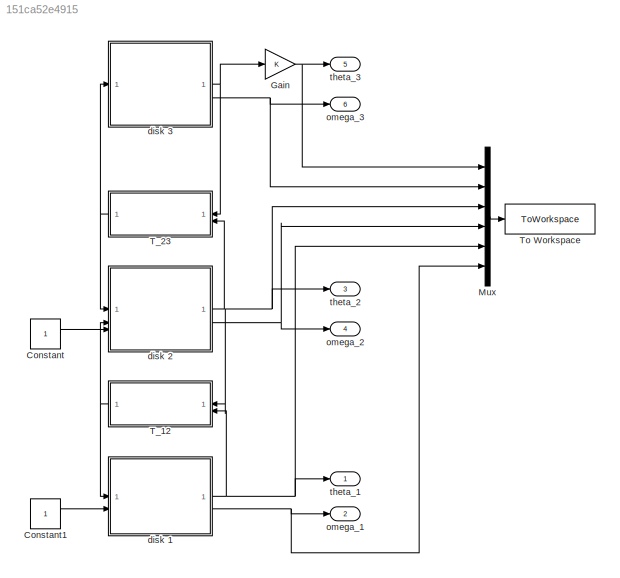
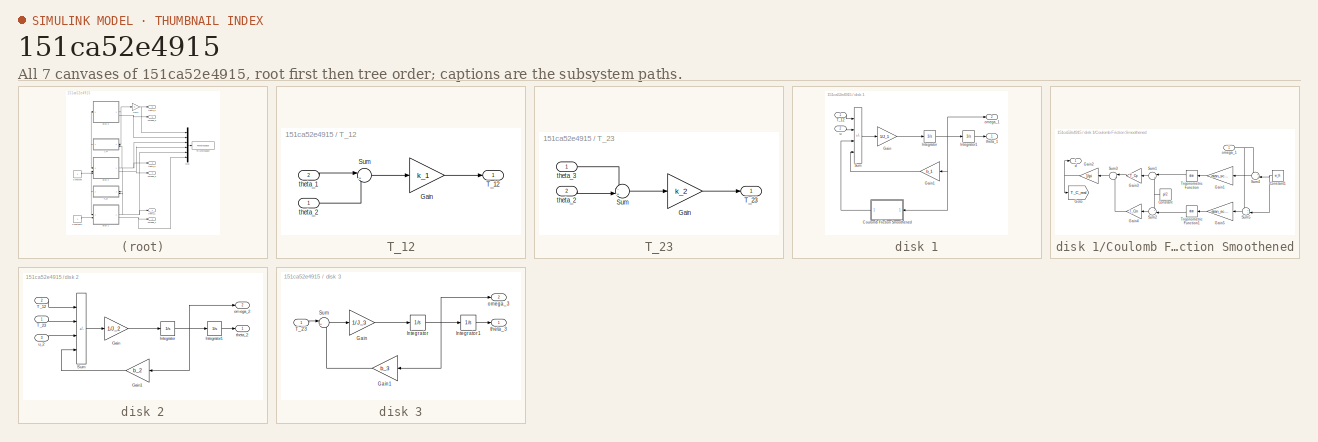
[diagram: thumbnail index - all 7 canvases of the model, root first then tree order]
MODEL slx_151ca52e4915
KIND model
CONFIG AbsTol = auto
CONFIG EnableMultiTasking = off
CONFIG FixedStep = auto
CONFIG MaxStep = auto
CONFIG MinStep = auto
CONFIG RelTol = 1e-3
CONFIG SampleTimeConstraint = Unconstrained
CONFIG SolverName = VariableStepAuto
CONFIG StartTime = 0.0
CONFIG StopTime = T_s
BLOCK [Constant] Constant
BLOCK [Constant] Constant1
BLOCK [Gain] Gain
BLOCK [Mux] Mux
  DisplayOption = bar
  Inputs = 6
BLOCK [SubSystem] T_12
BLOCK [Gain] T_12/Gain
  Gain = k_1
BLOCK [Sum] T_12/Sum
  Inputs = |+-
BLOCK [Outport] T_12/T_12
  VectorParamsAs1DForOutWhenUnconnected = off
BLOCK [Inport] T_12/theta_1
  Port = 2
BLOCK [Inport] T_12/theta_2
BLOCK [SubSystem] T_23
BLOCK [Gain] T_23/Gain
  Gain = k_2
BLOCK [Sum] T_23/Sum
  Inputs = -+|
BLOCK [Outport] T_23/T_23
  VectorParamsAs1DForOutWhenUnconnected = off
BLOCK [Inport] T_23/theta_2
  Port = 2
BLOCK [Inport] T_23/theta_3
BLOCK [ToWorkspace] To Workspace
  FixptAsFi = on
  MaxDataPoints = inf
  SampleTime = -1
  SaveFormat = Timeseries
  VariableName = simout
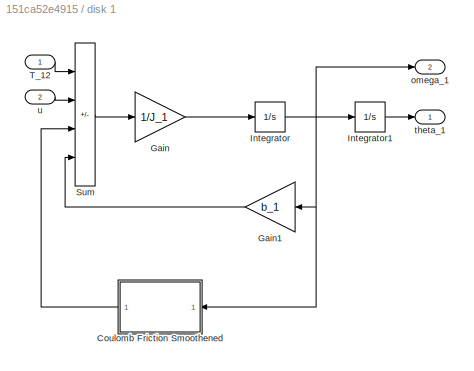
BLOCK [SubSystem] disk 1
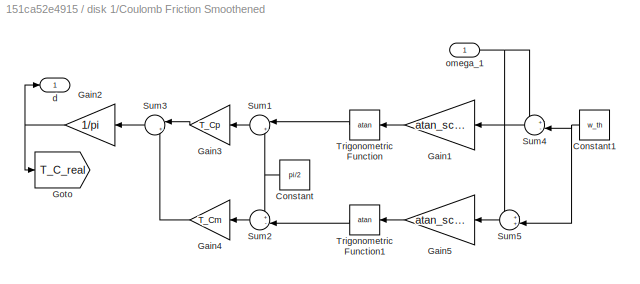
BLOCK [SubSystem] disk 1/Coulomb Friction Smoothened
BLOCK [Constant] disk 1/Coulomb Friction Smoothened/Constant
  Value = pi/2
BLOCK [Constant] disk 1/Coulomb Friction Smoothened/Constant1
  Value = w_th
BLOCK [Gain] disk 1/Coulomb Friction Smoothened/Gain1
  Gain = atan_scale
BLOCK [Gain] disk 1/Coulomb Friction Smoothened/Gain2
  Gain = 1/pi
BLOCK [Gain] disk 1/Coulomb Friction Smoothened/Gain3
  Gain = T_Cp
BLOCK [Gain] disk 1/Coulomb Friction Smoothened/Gain4
  Gain = T_Cm
BLOCK [Gain] disk 1/Coulomb Friction Smoothened/Gain5
  Gain = atan_scale
BLOCK [Goto] disk 1/Coulomb Friction Smoothened/Goto
  GotoTag = T_C_real
  TagVisibility = global
BLOCK [Sum] disk 1/Coulomb Friction Smoothened/Sum1
  Inputs = |++
BLOCK [Sum] disk 1/Coulomb Friction Smoothened/Sum2
  Inputs = +-|
BLOCK [Sum] disk 1/Coulomb Friction Smoothened/Sum3
  Inputs = |+-
BLOCK [Sum] disk 1/Coulomb Friction Smoothened/Sum4
  Inputs = +-|
BLOCK [Sum] disk 1/Coulomb Friction Smoothened/Sum5
  Inputs = ++|
BLOCK [Trigonometry] disk 1/Coulomb Friction Smoothened/Trigonometric Function
  Operator = atan
BLOCK [Trigonometry] disk 1/Coulomb Friction Smoothened/Trigonometric Function1
  Operator = atan
BLOCK [Outport] disk 1/Coulomb Friction Smoothened/d
  VectorParamsAs1DForOutWhenUnconnected = off
BLOCK [Inport] disk 1/Coulomb Friction Smoothened/omega_1
BLOCK [Gain] disk 1/Gain
  Gain = 1/J_1
BLOCK [Gain] disk 1/Gain1
  Gain = b_1
BLOCK [Integrator] disk 1/Integrator
  InitialCondition = x_0(2)
BLOCK [Integrator] disk 1/Integrator1
  InitialCondition = x_0(1)
BLOCK [Sum] disk 1/Sum
  IconShape = rectangular
  Inputs = -+--
BLOCK [Inport] disk 1/T_12
BLOCK [Outport] disk 1/omega_1
  Port = 2
  VectorParamsAs1DForOutWhenUnconnected = off
BLOCK [Outport] disk 1/theta_1
  VectorParamsAs1DForOutWhenUnconnected = off
BLOCK [Inport] disk 1/u
  Port = 2
BLOCK [SubSystem] disk 2
BLOCK [Gain] disk 2/Gain
  Gain = 1/J_2
BLOCK [Gain] disk 2/Gain1
  Gain = b_2
BLOCK [Integrator] disk 2/Integrator
  InitialCondition = x_0(4)
BLOCK [Integrator] disk 2/Integrator1
  InitialCondition = x_0(3)
BLOCK [Sum] disk 2/Sum
  IconShape = rectangular
  Inputs = +-+-
BLOCK [Inport] disk 2/T_12
  Port = 2
BLOCK [Inport] disk 2/T_23
BLOCK [Outport] disk 2/omega_2
  Port = 2
  VectorParamsAs1DForOutWhenUnconnected = off
BLOCK [Outport] disk 2/theta_2
  VectorParamsAs1DForOutWhenUnconnected = off
BLOCK [Inport] disk 2/u_2
  Port = 3
BLOCK [SubSystem] disk 3
BLOCK [Gain] disk 3/Gain
  Gain = 1/J_3
BLOCK [Gain] disk 3/Gain1
  Gain = b_3
BLOCK [Integrator] disk 3/Integrator
  InitialCondition = x_0(6)
BLOCK [Integrator] disk 3/Integrator1
  InitialCondition = x_0(5)
BLOCK [Sum] disk 3/Sum
  Inputs = |+-
BLOCK [Inport] disk 3/T_23
BLOCK [Outport] disk 3/omega_3
  Port = 2
  VectorParamsAs1DForOutWhenUnconnected = off
BLOCK [Outport] disk 3/theta_3
  VectorParamsAs1DForOutWhenUnconnected = off
BLOCK [Outport] omega_1
  Port = 2
  VectorParamsAs1DForOutWhenUnconnected = off
BLOCK [Outport] omega_2
  Port = 4
  VectorParamsAs1DForOutWhenUnconnected = off
BLOCK [Outport] omega_3
  Port = 6
  VectorParamsAs1DForOutWhenUnconnected = off
BLOCK [Outport] theta_1
  VectorParamsAs1DForOutWhenUnconnected = off
BLOCK [Outport] theta_2
  Port = 3
  VectorParamsAs1DForOutWhenUnconnected = off
BLOCK [Outport] theta_3
  Port = 5
  VectorParamsAs1DForOutWhenUnconnected = off
LINE Constant1:1 -> disk 1:2
LINE Constant:1 -> disk 2:3
NET Gain:1 -> Mux:1, theta_3:1
LINE Mux:1 -> To Workspace:1
LINE T_12/Gain:1 -> T_12/T_12:1
LINE T_12/Sum:1 -> T_12/Gain:1
LINE T_12/theta_1:1 -> T_12/Sum:1
LINE T_12/theta_2:1 -> T_12/Sum:2
NET T_12:1 -> disk 1:1, disk 2:2
LINE T_23/Gain:1 -> T_23/T_23:1
LINE T_23/Sum:1 -> T_23/Gain:1
LINE T_23/theta_2:1 -> T_23/Sum:2
LINE T_23/theta_3:1 -> T_23/Sum:1
NET T_23:1 -> disk 2:1, disk 3:1
NET disk 1/Coulomb Friction Smoothened/Constant1:1 -> disk 1/Coulomb Friction Smoothened/Sum4:2, disk 1/Coulomb Friction Smoothened/Sum5:2
NET disk 1/Coulomb Friction Smoothened/Constant:1 -> disk 1/Coulomb Friction Smoothened/Sum1:2, disk 1/Coulomb Friction Smoothened/Sum2:1
LINE disk 1/Coulomb Friction Smoothened/Gain1:1 -> disk 1/Coulomb Friction Smoothened/Trigonometric Function:1
NET disk 1/Coulomb Friction Smoothened/Gain2:1 -> disk 1/Coulomb Friction Smoothened/Goto:1, disk 1/Coulomb Friction Smoothened/d:1
LINE disk 1/Coulomb Friction Smoothened/Gain3:1 -> disk 1/Coulomb Friction Smoothened/Sum3:1
LINE disk 1/Coulomb Friction Smoothened/Gain4:1 -> disk 1/Coulomb Friction Smoothened/Sum3:2
LINE disk 1/Coulomb Friction Smoothened/Gain5:1 -> disk 1/Coulomb Friction Smoothened/Trigonometric Function1:1
LINE disk 1/Coulomb Friction Smoothened/Sum1:1 -> disk 1/Coulomb Friction Smoothened/Gain3:1
LINE disk 1/Coulomb Friction Smoothened/Sum2:1 -> disk 1/Coulomb Friction Smoothened/Gain4:1
LINE disk 1/Coulomb Friction Smoothened/Sum3:1 -> disk 1/Coulomb Friction Smoothened/Gain2:1
LINE disk 1/Coulomb Friction Smoothened/Sum4:1 -> disk 1/Coulomb Friction Smoothened/Gain1:1
LINE disk 1/Coulomb Friction Smoothened/Sum5:1 -> disk 1/Coulomb Friction Smoothened/Gain5:1
LINE disk 1/Coulomb Friction Smoothened/Trigonometric Function1:1 -> disk 1/Coulomb Friction Smoothened/Sum2:2
LINE disk 1/Coulomb Friction Smoothened/Trigonometric Function:1 -> disk 1/Coulomb Friction Smoothened/Sum1:1
NET disk 1/Coulomb Friction Smoothened/omega_1:1 -> disk 1/Coulomb Friction Smoothened/Sum4:1, disk 1/Coulomb Friction Smoothened/Sum5:1
LINE disk 1/Coulomb Friction Smoothened:1 -> disk 1/Sum:3
LINE disk 1/Gain1:1 -> disk 1/Sum:4
LINE disk 1/Gain:1 -> disk 1/Integrator:1
LINE disk 1/Integrator1:1 -> disk 1/theta_1:1
NET disk 1/Integrator:1 -> disk 1/Coulomb Friction Smoothened:1, disk 1/Gain1:1, disk 1/Integrator1:1, disk 1/omega_1:1
LINE disk 1/Sum:1 -> disk 1/Gain:1
LINE disk 1/T_12:1 -> disk 1/Sum:1
LINE disk 1/u:1 -> disk 1/Sum:2
NET disk 1:1 -> Mux:5, T_12:2, theta_1:1
NET disk 1:2 -> Mux:6, omega_1:1
LINE disk 2/Gain1:1 -> disk 2/Sum:4
LINE disk 2/Gain:1 -> disk 2/Integrator:1
LINE disk 2/Integrator1:1 -> disk 2/theta_2:1
NET disk 2/Integrator:1 -> disk 2/Gain1:1, disk 2/Integrator1:1, disk 2/omega_2:1
LINE disk 2/Sum:1 -> disk 2/Gain:1
LINE disk 2/T_12:1 -> disk 2/Sum:1
LINE disk 2/T_23:1 -> disk 2/Sum:2
LINE disk 2/u_2:1 -> disk 2/Sum:3
NET disk 2:1 -> Mux:3, T_12:1, T_23:2, theta_2:1
NET disk 2:2 -> Mux:4, omega_2:1
LINE disk 3/Gain1:1 -> disk 3/Sum:2
LINE disk 3/Gain:1 -> disk 3/Integrator:1
LINE disk 3/Integrator1:1 -> disk 3/theta_3:1
NET disk 3/Integrator:1 -> disk 3/Gain1:1, disk 3/Integrator1:1, disk 3/omega_3:1
LINE disk 3/Sum:1 -> disk 3/Gain:1
LINE disk 3/T_23:1 -> disk 3/Sum:1
NET disk 3:1 -> Gain:1, T_23:1
NET disk 3:2 -> Mux:2, omega_3:1
note: NET lines group one-source signal fan-out (src -> all destinations, sorted); 1:1 wires keep LINE
